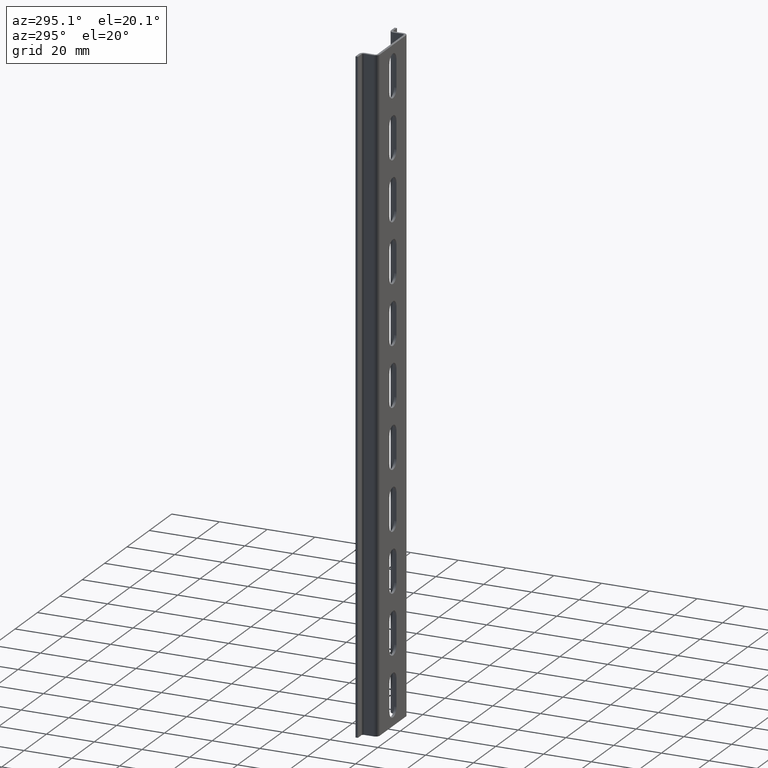
[diagram: clean part render]
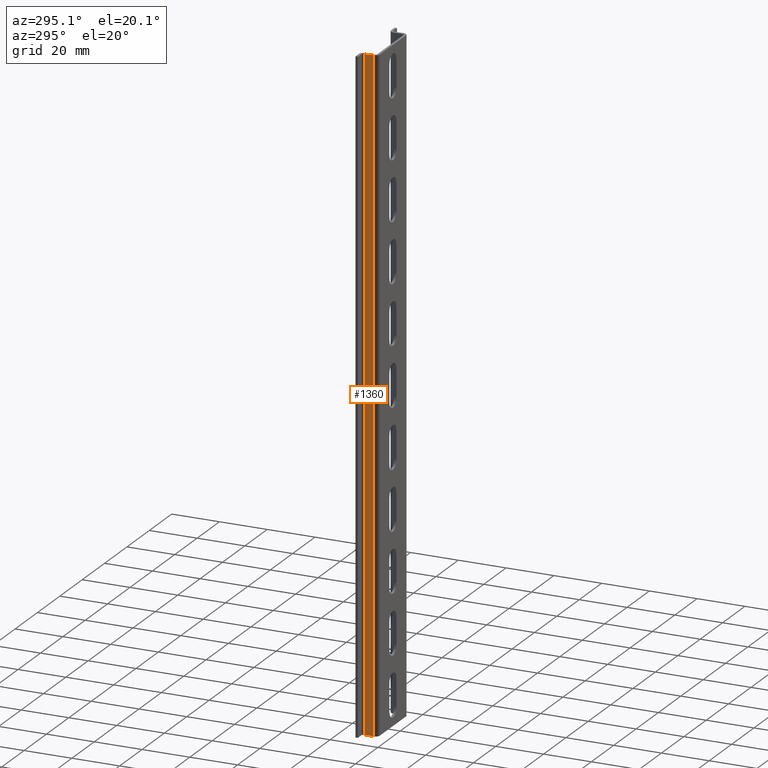
[diagram: same view with one face highlighted and labeled with its STEP entity id]
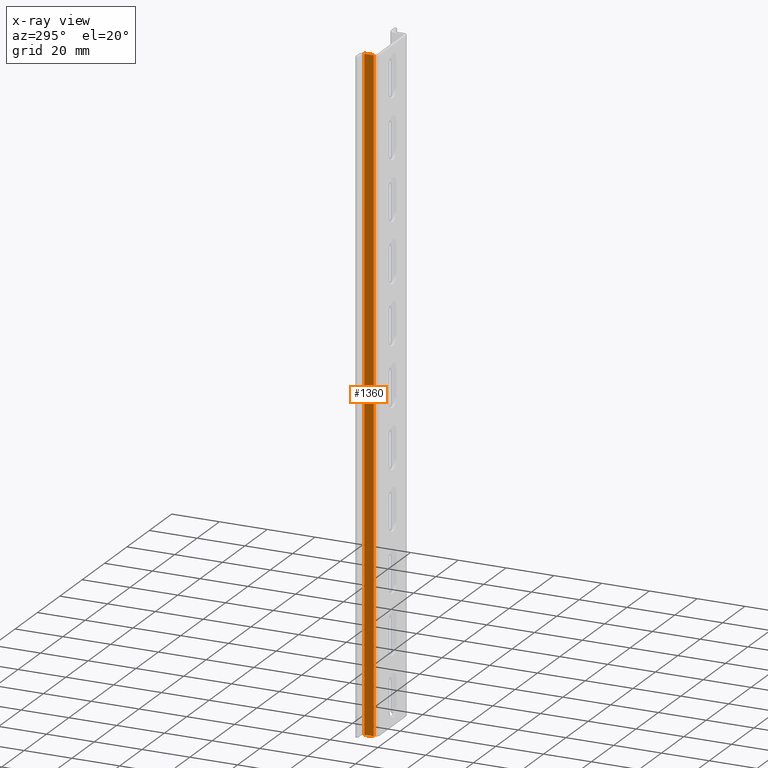
[diagram: x-ray of the same camera — body ghosted, the highlighted face saturated]
A machine part, auxiliary view. The second image highlights one B-rep face of the part: STEP entity #1360.
The next image is the same camera in x-ray: the body ghosted, the highlighted face saturated — about 0% of this face is hidden behind the body in this view.
In plain terms, the highlighted planar face has unit normal (1, 0, 0).
Its self-contained STEP definition (entity closure, byte-faithful):
#177 = VERTEX_POINT ( 'NONE', #774 ) ;
#248 = CARTESIAN_POINT ( 'NONE',  ( 0.000000000000000000, 6.500000000000000000, -2.886579864024999558E-15 ) ) ;
#282 = EDGE_LOOP ( 'NONE', ( #600, #1339, #616, #1236 ) ) ;
#423 = VERTEX_POINT ( 'NONE', #522 ) ;
#486 = LINE ( 'NONE', #2305, #817 ) ;
#522 = CARTESIAN_POINT ( 'NONE',  ( 1.110223024624999878E-16, 5.700000000000000178, 275.0000000000000000 ) ) ;
#525 = DIRECTION ( 'NONE',  ( 0.000000000000000000, 4.440892098500999885E-16, 1.000000000000000000 ) ) ;
#561 = LINE ( 'NONE', #1116, #1471 ) ;
#595 = EDGE_CURVE ( 'NONE', #177, #423, #486, .T. ) ;
#600 = ORIENTED_EDGE ( 'NONE', *, *, #1332, .T. ) ;
#616 = ORIENTED_EDGE ( 'NONE', *, *, #595, .F. ) ;
#714 = DIRECTION ( 'NONE',  ( 0.000000000000000000, -1.000000000000000000, 4.440892098500999885E-16 ) ) ;
#774 = CARTESIAN_POINT ( 'NONE',  ( 1.110223024624999878E-16, 5.700000000000000178, -2.531308496145000031E-15 ) ) ;
#790 = DIRECTION ( 'NONE',  ( 0.000000000000000000, 4.440892098500999885E-16, 1.000000000000000000 ) ) ;
#817 = VECTOR ( 'NONE', #525, 1000.000000000000000 ) ;
#912 = CARTESIAN_POINT ( 'NONE',  ( 0.000000000000000000, 6.500000000000000000, -2.886579864024999558E-15 ) ) ;
#943 = AXIS2_PLACEMENT_3D ( 'NONE', #248, #1611, #1577 ) ;
#1116 = CARTESIAN_POINT ( 'NONE',  ( 0.000000000000000000, 6.500000000000000000, 275.0000000000000000 ) ) ;
#1117 = EDGE_CURVE ( 'NONE', #177, #2252, #1607, .T. ) ;
#1236 = ORIENTED_EDGE ( 'NONE', *, *, #1117, .T. ) ;
#1332 = EDGE_CURVE ( 'NONE', #2252, #1402, #2092, .T. ) ;
#1339 = ORIENTED_EDGE ( 'NONE', *, *, #1523, .F. ) ;
#1360 = ADVANCED_FACE ( 'NONE', ( #1864 ), #2037, .F. ) ;
#1387 = CARTESIAN_POINT ( 'NONE',  ( -2.220446049249999755E-16, 1.800000000000000044, -7.993605777301000084E-16 ) ) ;
#1402 = VERTEX_POINT ( 'NONE', #2320 ) ;
#1471 = VECTOR ( 'NONE', #714, 1000.000000000000000 ) ;
#1523 = EDGE_CURVE ( 'NONE', #423, #1402, #561, .T. ) ;
#1577 = DIRECTION ( 'NONE',  ( 0.000000000000000000, 1.000000000000000000, 0.000000000000000000 ) ) ;
#1607 = LINE ( 'NONE', #912, #1803 ) ;
#1611 = DIRECTION ( 'NONE',  ( 1.000000000000000000, 0.000000000000000000, 0.000000000000000000 ) ) ;
#1803 = VECTOR ( 'NONE', #2314, 1000.000000000000000 ) ;
#1863 = CARTESIAN_POINT ( 'NONE',  ( -2.220446049249999755E-16, 1.800000000000000044, -7.993605777301000084E-16 ) ) ;
#1864 = FACE_OUTER_BOUND ( 'NONE', #282, .T. ) ;
#1952 = VECTOR ( 'NONE', #790, 1000.000000000000000 ) ;
#2037 = PLANE ( 'NONE',  #943 ) ;
#2092 = LINE ( 'NONE', #1387, #1952 ) ;
#2252 = VERTEX_POINT ( 'NONE', #1863 ) ;
#2305 = CARTESIAN_POINT ( 'NONE',  ( 1.110223024624999878E-16, 5.700000000000000178, -2.531308496145000031E-15 ) ) ;
#2314 = DIRECTION ( 'NONE',  ( 0.000000000000000000, -1.000000000000000000, 4.440892098500999885E-16 ) ) ;
#2320 = CARTESIAN_POINT ( 'NONE',  ( -2.220446049249999755E-16, 1.800000000000000044, 275.0000000000000000 ) ) ;